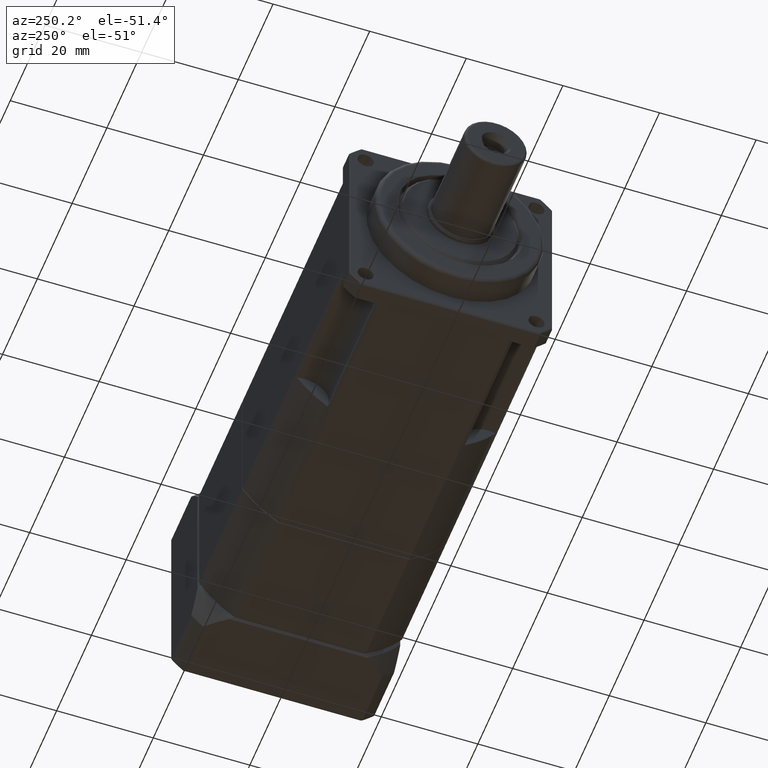
[diagram: clean part render]
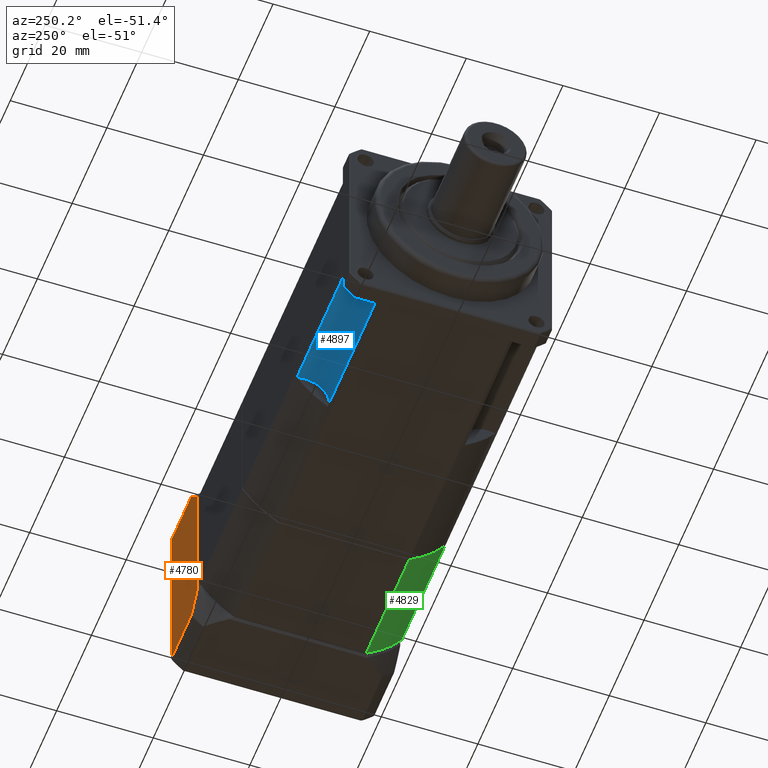
[diagram: same view with three faces highlighted in distinct colors, each labeled with its STEP entity id]
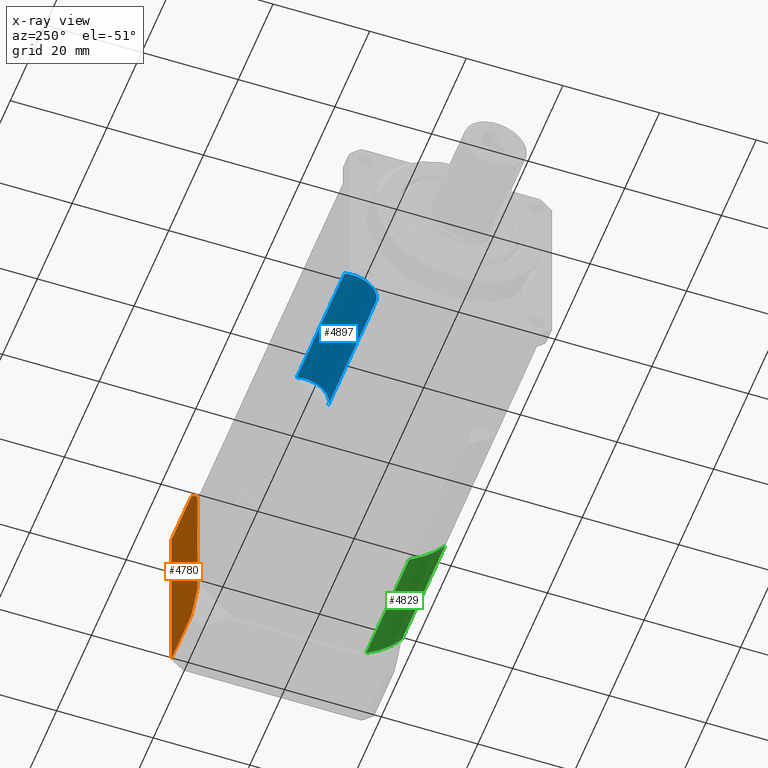
[diagram: x-ray of the same camera — body ghosted, the three highlighted faces saturated]
A machine part, auxiliary view with three faces highlighted in distinct colors.
The next image is the same camera in x-ray (body ghosted, the three faces saturated) — at least one of them is partly hidden behind the body in this view.
Their STEP definitions:

[orange] entity #4780 — the highlighted planar face has unit normal (-0, 1, -0).
#173=LINE('',#7418,#407);
#195=LINE('',#7580,#429);
#199=LINE('',#7645,#433);
#200=LINE('',#7647,#434);
#407=VECTOR('',#5928,37.0405183549043);
#429=VECTOR('',#6050,28.6829409231341);
#433=VECTOR('',#6094,11.5014761628236);
#434=VECTOR('',#6097,11.5014761628236);
#736=PLANE('',#5217);
#1086=FACE_OUTER_BOUND('',#1459,.T.);
#1459=EDGE_LOOP('',(#3482,#3483,#3484,#3485,#3486,#3487));
#1879=CIRCLE('',#5211,25.740404037233);
#1880=CIRCLE('',#5213,25.740404037233);
#2155=VERTEX_POINT('',#7404);
#2157=VERTEX_POINT('',#7413);
#2198=VERTEX_POINT('',#7578);
#2199=VERTEX_POINT('',#7579);
#2204=VERTEX_POINT('',#7637);
#2205=VERTEX_POINT('',#7641);
#2611=EDGE_CURVE('',#2157,#2155,#173,.T.);
#2677=EDGE_CURVE('',#2198,#2199,#195,.T.);
#2690=EDGE_CURVE('',#2198,#2204,#1879,.T.);
#2691=EDGE_CURVE('',#2205,#2199,#1880,.T.);
#2693=EDGE_CURVE('',#2157,#2205,#199,.T.);
#2694=EDGE_CURVE('',#2204,#2155,#200,.T.);
#3482=ORIENTED_EDGE('',*,*,#2611,.F.);
#3483=ORIENTED_EDGE('',*,*,#2693,.T.);
#3484=ORIENTED_EDGE('',*,*,#2691,.T.);
#3485=ORIENTED_EDGE('',*,*,#2677,.F.);
#3486=ORIENTED_EDGE('',*,*,#2690,.T.);
#3487=ORIENTED_EDGE('',*,*,#2694,.T.);
#4780=ADVANCED_FACE('',(#1086),#736,.T.);
#5211=AXIS2_PLACEMENT_3D('',#7639,#6084,#6085);
#5213=AXIS2_PLACEMENT_3D('',#7642,#6088,#6089);
#5217=AXIS2_PLACEMENT_3D('',#7648,#6098,#6099);
#5928=DIRECTION('',(1.93008699861478E-15,9.9279050588951E-15,1.));
#6050=DIRECTION('',(-1.93008699861478E-15,-9.9279050588951E-15,-1.));
#6084=DIRECTION('center_axis',(-1.09392228088446E-16,1.,-9.9279050588951E-15));
#6085=DIRECTION('ref_axis',(-1.93008699861478E-15,-9.9279050588951E-15,
-1.));
#6088=DIRECTION('center_axis',(-1.09392228088446E-16,1.,-9.9279050588951E-15));
#6089=DIRECTION('ref_axis',(-1.93008699861478E-15,-9.9279050588951E-15,
-1.));
#6094=DIRECTION('',(-1.,-1.09392228088427E-16,1.93008699861479E-15));
#6097=DIRECTION('',(1.,1.09392228088427E-16,-1.93008699861479E-15));
#6098=DIRECTION('center_axis',(-1.09392228088446E-16,1.,-9.9279050588951E-15));
#6099=DIRECTION('ref_axis',(-1.4210854715202E-15,-9.9475983006414E-15,-1.));
#7404=CARTESIAN_POINT('',(63.7159950143863,-17.8674851319123,-8.82749611668147));
#7413=CARTESIAN_POINT('',(63.7159950143862,-17.8674851319126,-45.8680144715857));
#7418=CARTESIAN_POINT('',(63.7159950143863,-17.8674851319124,-16.8477552941336));
#7578=CARTESIAN_POINT('',(48.7159950143863,-17.8674851319123,-13.0062848325665));
#7579=CARTESIAN_POINT('',(48.7159950143862,-17.8674851319126,-41.6892257557006));
#7580=CARTESIAN_POINT('',(48.7159950143863,-17.8674851319124,-16.8477552941336));
#7637=CARTESIAN_POINT('',(52.2145188515627,-17.8674851319123,-8.82749611668145));
#7639=CARTESIAN_POINT('Origin',(70.0909950143863,-17.8674851319125,-27.3477552941336));
#7641=CARTESIAN_POINT('',(52.2145188515626,-17.8674851319126,-45.8680144715857));
#7642=CARTESIAN_POINT('Origin',(70.0909950143863,-17.8674851319125,-27.3477552941336));
#7645=CARTESIAN_POINT('',(64.2159950143862,-17.8674851319126,-45.8680144715857));
#7647=CARTESIAN_POINT('',(64.2159950143863,-17.8674851319123,-8.82749611668147));
#7648=CARTESIAN_POINT('Origin',(64.2159950143863,-17.8674851319122,-6.34775529413359));

[blue] entity #4897 — the highlighted cylindrical surface (edge-blend (fillet) strip) has radius 5 mm, axis along (-1, 0, 0).
#261=LINE('',#8224,#495);
#262=LINE('',#8225,#496);
#495=VECTOR('',#6620,27.5);
#496=VECTOR('',#6621,27.5);
#1203=FACE_OUTER_BOUND('',#1634,.T.);
#1634=EDGE_LOOP('',(#3878,#3879,#3880,#3881));
#1896=CIRCLE('',#5253,5.);
#1944=CIRCLE('',#5362,5.);
#2220=VERTEX_POINT('',#7710);
#2221=VERTEX_POINT('',#7711);
#2289=VERTEX_POINT('',#7988);
#2290=VERTEX_POINT('',#7990);
#2710=EDGE_CURVE('',#2220,#2221,#1896,.T.);
#2811=EDGE_CURVE('',#2290,#2289,#1944,.T.);
#2901=EDGE_CURVE('',#2221,#2289,#261,.T.);
#2902=EDGE_CURVE('',#2290,#2220,#262,.T.);
#3878=ORIENTED_EDGE('',*,*,#2901,.F.);
#3879=ORIENTED_EDGE('',*,*,#2710,.F.);
#3880=ORIENTED_EDGE('',*,*,#2902,.F.);
#3881=ORIENTED_EDGE('',*,*,#2811,.T.);
#4447=CYLINDRICAL_SURFACE('',#5447,5.);
#4897=ADVANCED_FACE('',(#1203),#4447,.F.);
#5253=AXIS2_PLACEMENT_3D('',#7712,#6170,#6171);
#5362=AXIS2_PLACEMENT_3D('',#7991,#6417,#6418);
#5447=AXIS2_PLACEMENT_3D('',#8223,#6618,#6619);
#6170=DIRECTION('center_axis',(-1.,4.44089209850051E-16,1.50008167835232E-15));
#6171=DIRECTION('ref_axis',(-1.50008167835233E-15,-9.55762566575252E-15,
-1.));
#6417=DIRECTION('center_axis',(-1.,4.44089209850051E-16,1.50008167835232E-15));
#6418=DIRECTION('ref_axis',(-1.50008167835233E-15,-9.55762566575252E-15,
-1.));
#6618=DIRECTION('center_axis',(-1.,4.44089209850051E-16,1.50008167835232E-15));
#6619=DIRECTION('ref_axis',(-1.50008167835233E-15,-9.55762566575252E-15,
-1.));
#6620=DIRECTION('',(-1.,4.44089209850051E-16,1.50008167835232E-15));
#6621=DIRECTION('',(1.,-4.44089209850051E-16,-1.50008167835232E-15));
#7710=CARTESIAN_POINT('',(-7.28400498561362,-24.6683513078359,-47.9240668840651));
#7711=CARTESIAN_POINT('',(-7.2840049856136,-18.2911735419808,-41.5468891182102));
#7712=CARTESIAN_POINT('Origin',(-7.28400498561361,-19.9523787351725,-46.2628616908736));
#7988=CARTESIAN_POINT('',(-34.7840049856136,-18.2911735419808,-41.5468891182102));
#7990=CARTESIAN_POINT('',(-34.7840049856136,-24.6683513078359,-47.9240668840651));
#7991=CARTESIAN_POINT('Origin',(-34.7840049856136,-19.9523787351725,-46.2628616908735));
#8223=CARTESIAN_POINT('Origin',(-7.28400498561361,-19.9523787351725,-46.2628616908736));
#8224=CARTESIAN_POINT('',(-7.2840049856136,-18.2911735419808,-41.5468891182102));
#8225=CARTESIAN_POINT('',(-7.28400498561362,-24.6683513078359,-47.9240668840651));

[green] entity #4829 — the highlighted cylindrical surface (partial cylindrical patch) has radius 25 mm, axis along (-1, -0, 0).
#219=LINE('',#7829,#453);
#225=LINE('',#7891,#459);
#453=VECTOR('',#6260,24.8);
#459=VECTOR('',#6302,24.8);
#1135=FACE_OUTER_BOUND('',#1526,.T.);
#1526=EDGE_LOOP('',(#3651,#3652,#3653,#3654));
#1908=CIRCLE('',#5270,25.);
#1918=CIRCLE('',#5304,25.);
#2240=VERTEX_POINT('',#7754);
#2242=VERTEX_POINT('',#7766);
#2252=VERTEX_POINT('',#7828);
#2258=VERTEX_POINT('',#7879);
#2735=EDGE_CURVE('',#2242,#2240,#1908,.T.);
#2758=EDGE_CURVE('',#2240,#2252,#219,.T.);
#2774=EDGE_CURVE('',#2252,#2258,#1918,.T.);
#2777=EDGE_CURVE('',#2258,#2242,#225,.T.);
#3651=ORIENTED_EDGE('',*,*,#2735,.F.);
#3652=ORIENTED_EDGE('',*,*,#2777,.F.);
#3653=ORIENTED_EDGE('',*,*,#2774,.F.);
#3654=ORIENTED_EDGE('',*,*,#2758,.F.);
#4425=CYLINDRICAL_SURFACE('',#5307,25.);
#4829=ADVANCED_FACE('',(#1135),#4425,.T.);
#5270=AXIS2_PLACEMENT_3D('',#7771,#6213,#6214);
#5304=AXIS2_PLACEMENT_3D('',#7886,#6294,#6295);
#5307=AXIS2_PLACEMENT_3D('',#7892,#6303,#6304);
#6213=DIRECTION('center_axis',(1.,1.06348745799565E-16,-2.09341157557153E-15));
#6214=DIRECTION('ref_axis',(-2.09341157557153E-15,-8.8592327918137E-15,
-1.));
#6260=DIRECTION('',(-1.,-1.06348745799565E-16,2.09341157557153E-15));
#6294=DIRECTION('center_axis',(-1.,-1.06348745799565E-16,2.09341157557153E-15));
#6295=DIRECTION('ref_axis',(-2.09341157557153E-15,-8.8592327918137E-15,
-1.));
#6302=DIRECTION('',(1.,1.06348745799565E-16,-2.09341157557153E-15));
#6303=DIRECTION('center_axis',(-1.,-1.06348745799565E-16,2.09341157557153E-15));
#6304=DIRECTION('ref_axis',(2.09341157557153E-15,8.8592327918137E-15,1.));
#7754=CARTESIAN_POINT('',(47.7159950143862,-52.4321450981632,-48.3477552941332));
#7766=CARTESIAN_POINT('',(47.7159950143862,-59.8674851319126,-40.9124152603837));
#7771=CARTESIAN_POINT('Origin',(47.7159950143862,-38.8674851319125,-27.3477552941333));
#7828=CARTESIAN_POINT('',(22.9159950143862,-52.4321450981632,-48.3477552941332));
#7829=CARTESIAN_POINT('',(48.2159950143862,-52.4321450981632,-48.3477552941332));
#7879=CARTESIAN_POINT('',(22.9159950143862,-59.8674851319126,-40.9124152603836));
#7886=CARTESIAN_POINT('Origin',(22.9159950143862,-38.8674851319125,-27.3477552941333));
#7891=CARTESIAN_POINT('',(48.2159950143862,-59.8674851319126,-40.9124152603837));
#7892=CARTESIAN_POINT('Origin',(48.2159950143862,-38.8674851319125,-27.3477552941333));